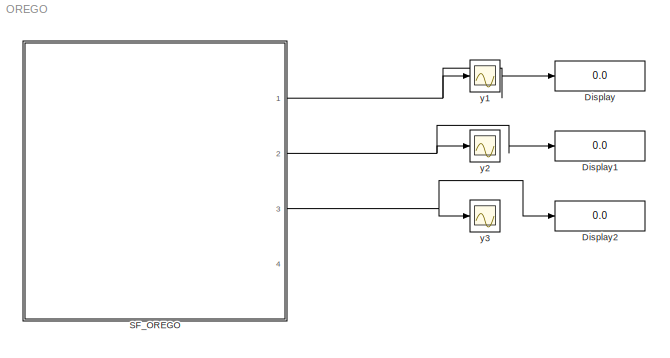
MODEL OREGO
KIND model
BLOCK [Display] Display
  Decimation = 1
  Ports = [1]
  SID = 7
BLOCK [Display] Display1
  Decimation = 1
  Ports = [1]
  SID = 8
BLOCK [Display] Display2
  Decimation = 1
  Ports = [1]
  SID = 9
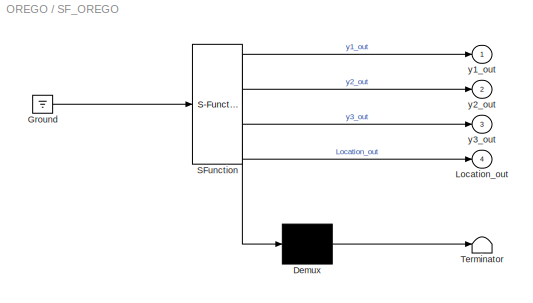
BLOCK [SubSystem] SF_OREGO
  ErrorFcn = Stateflow.Translate.translate
  PermitHierarchicalResolution = ExplicitOnly
  Ports = [0, 4]
  RequestExecContextInheritance = off
  SFBlockType = Chart
  SID = 1
  TreatAsAtomicUnit = on
BLOCK [Demux] SF_OREGO/ Demux 
  Outputs = 1
  Ports = [1, 1]
  SID = 1::70
BLOCK [Ground] SF_OREGO/ Ground 
  SID = 1::72
BLOCK [S-Function] SF_OREGO/ SFunction 
  EnableBusSupport = off
  FunctionName = sf_sfun
  PortCounts = [1 5]
  Ports = [1, 5]
  SFcnIsStateOwnerBlock = off
  SFunctionDeploymentMode = off
  SID = 1::69
  Tag = Stateflow S-Function 3
BLOCK [Terminator] SF_OREGO/ Terminator 
  SID = 1::71
BLOCK [Outport] SF_OREGO/Location_out
  IconDisplay = Port number
  Port = 4
  SID = 1::68
BLOCK [Outport] SF_OREGO/y1_out
  IconDisplay = Port number
  SID = 1::65
BLOCK [Outport] SF_OREGO/y2_out
  IconDisplay = Port number
  Port = 2
  SID = 1::66
BLOCK [Outport] SF_OREGO/y3_out
  IconDisplay = Port number
  Port = 3
  SID = 1::67
BLOCK [Scope] y1
  Floating = off
  NumInputPorts = 1
  Ports = [1]
  SID = 4
  ScopeSpecificationString = C++SS(StrPVP('Location','[1601, 53, 3521, 1079]'),StrPVP('Open','off'),MxPVP('AxesTitles',54,'struct(''axes1'',''%<SignalLabel>'')'),MxPVP('ScopeGraphics',57,'struct(''FigureColor'',''[0.501960784313725 0.501960784313725 0.501960784313725]'',''AxesColor'',''[0 0 0]'',''AxesTickColor'',''[1 1 1]'',''LineColors'',''[1 1 0;1 0 1;0 1 1;1 0 0;0 1 0;0 0 1]'',''LineStyles'',''-|-|-|-|-|-'',''LineWidths''...<+344ch>
BLOCK [Scope] y2
  Floating = off
  NumInputPorts = 1
  Ports = [1]
  SID = 5
  ScopeSpecificationString = C++SS(StrPVP('Location','[1601, 53, 3521, 1079]'),StrPVP('Open','off'),MxPVP('AxesTitles',54,'struct(''axes1'',''%<SignalLabel>'')'),MxPVP('ScopeGraphics',57,'struct(''FigureColor'',''[0.501960784313725 0.501960784313725 0.501960784313725]'',''AxesColor'',''[0 0 0]'',''AxesTickColor'',''[1 1 1]'',''LineColors'',''[1 1 0;1 0 1;0 1 1;1 0 0;0 1 0;0 0 1]'',''LineStyles'',''-|-|-|-|-|-'',''LineWidths''...<+335ch>
BLOCK [Scope] y3
  Floating = off
  NumInputPorts = 1
  Ports = [1]
  SID = 6
  ScopeSpecificationString = C++SS(StrPVP('Location','[1601, 53, 3521, 1079]'),StrPVP('Open','off'),MxPVP('AxesTitles',54,'struct(''axes1'',''%<SignalLabel>'')'),MxPVP('ScopeGraphics',57,'struct(''FigureColor'',''[0.5 0.5 0.5]'',''AxesColor'',''[0 0 0]'',''AxesTickColor'',''[1 1 1]'',''LineColors'',''[1 1 0;1 0 1;0 1 1;1 0 0;0 1 0;0 0 1]'',''LineStyles'',''-|-|-|-|-|-'',''LineWidths'',''[0.5 0.5 0.5 0.5 0.5 0.5]'',''MarkerSty...<+293ch>
LINE SF_OREGO/ Demux :1 -> SF_OREGO/ Terminator :1
LINE SF_OREGO/ Ground :1 -> SF_OREGO/ SFunction :1
LINE SF_OREGO/ SFunction :1 -> SF_OREGO/ Demux :1
LINE SF_OREGO/ SFunction :2 -> SF_OREGO/y1_out:1
LINE SF_OREGO/ SFunction :3 -> SF_OREGO/y2_out:1
LINE SF_OREGO/ SFunction :4 -> SF_OREGO/y3_out:1
LINE SF_OREGO/ SFunction :5 -> SF_OREGO/Location_out:1
NET SF_OREGO:1 -> Display:1, y1:1
NET SF_OREGO:2 -> Display1:1, y2:1
NET SF_OREGO:3 -> Display2:1, y3:1
note: NET lines group one-source signal fan-out (src -> all destinations, sorted); 1:1 wires keep LINE
CHART SF_OREGO states=1 transitions=1
  STATE_LABEL 'OREGO\\ndu:\\ny1_dot=s*(y2-y1*y2+y1-q*y1^2);\\ny2_dot=(1/s)*(0-y2-y1*y2+y3);\\ny3_dot=w*(y1-y3);\\ny1_out=y1;\\ny2_out=y2;\\ny3_out=y3;\\nLocation_out =1;'
